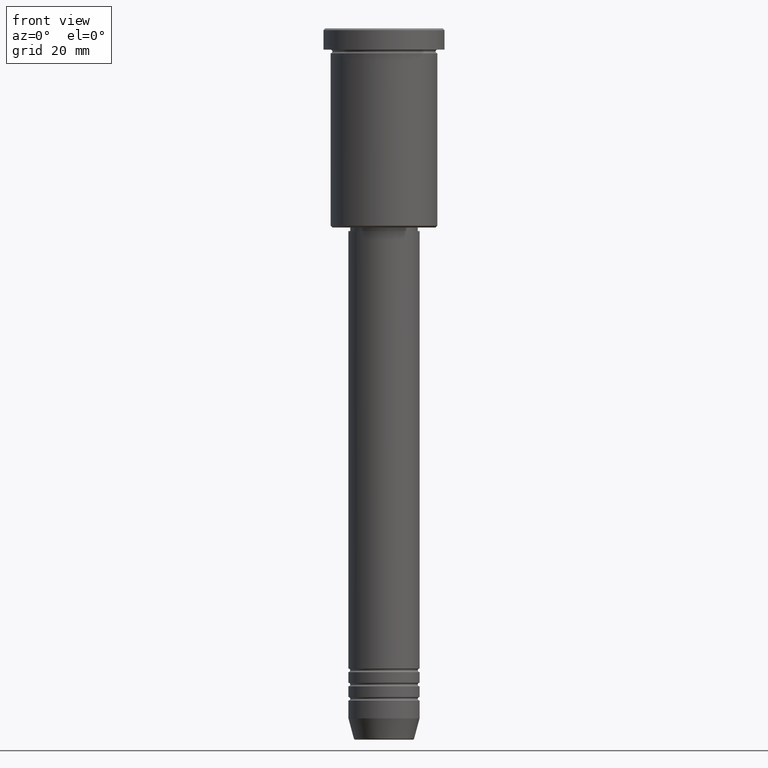
[diagram: clean part render]
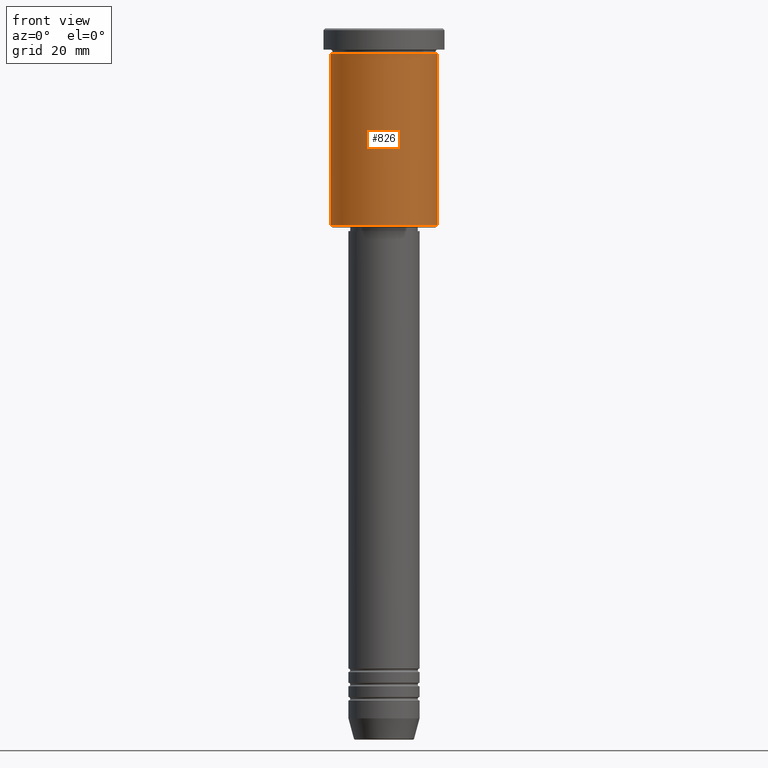
[diagram: same view with one face highlighted and labeled with its STEP entity id]
A machine part, front view. The second image highlights one B-rep face of the part: STEP entity #826.
In plain terms, the highlighted cylindrical surface (partial cylindrical patch) has radius 15 mm, axis along (-0, -0, 1).
Its self-contained STEP definition (entity closure, byte-faithful):
#10 = CIRCLE ( 'NONE', #573, 15.00000000000000000 ) ;
#14 = AXIS2_PLACEMENT_3D ( 'NONE', #670, #955, #1054 ) ;
#104 = DIRECTION ( 'NONE',  ( -0.000000000000000000, -0.000000000000000000, 1.000000000000000000 ) ) ;
#136 = DIRECTION ( 'NONE',  ( -0.000000000000000000, -0.000000000000000000, 1.000000000000000000 ) ) ;
#154 = AXIS2_PLACEMENT_3D ( 'NONE', #1010, #831, #755 ) ;
#243 = CARTESIAN_POINT ( 'NONE',  ( 15.00000000000000000, 0.000000000000000000, -6.999999999999995559 ) ) ;
#248 = EDGE_CURVE ( 'NONE', #411, #486, #984, .T. ) ;
#262 = CIRCLE ( 'NONE', #14, 15.00000000000000000 ) ;
#265 = VECTOR ( 'NONE', #136, 1000.000000000000000 ) ;
#294 = VERTEX_POINT ( 'NONE', #243 ) ;
#394 = LINE ( 'NONE', #754, #265 ) ;
#396 = CYLINDRICAL_SURFACE ( 'NONE', #154, 15.00000000000000000 ) ;
#406 = EDGE_CURVE ( 'NONE', #486, #294, #10, .T. ) ;
#411 = VERTEX_POINT ( 'NONE', #565 ) ;
#470 = FACE_OUTER_BOUND ( 'NONE', #1087, .T. ) ;
#486 = VERTEX_POINT ( 'NONE', #882 ) ;
#541 = DIRECTION ( 'NONE',  ( 1.000000000000000000, 0.000000000000000000, 0.000000000000000000 ) ) ;
#565 = CARTESIAN_POINT ( 'NONE',  ( -15.00000000000000000, 1.836970198721029589E-15, -55.49999999999998579 ) ) ;
#573 = AXIS2_PLACEMENT_3D ( 'NONE', #1021, #104, #541 ) ;
#670 = CARTESIAN_POINT ( 'NONE',  ( 0.000000000000000000, 0.000000000000000000, -55.49999999999998579 ) ) ;
#708 = DIRECTION ( 'NONE',  ( -0.000000000000000000, -0.000000000000000000, 1.000000000000000000 ) ) ;
#727 = ORIENTED_EDGE ( 'NONE', *, *, #956, .T. ) ;
#740 = VECTOR ( 'NONE', #708, 1000.000000000000000 ) ;
#754 = CARTESIAN_POINT ( 'NONE',  ( 15.00000000000000000, 0.000000000000000000, 0.000000000000000000 ) ) ;
#755 = DIRECTION ( 'NONE',  ( 1.000000000000000000, 0.000000000000000000, 0.000000000000000000 ) ) ;
#813 = ORIENTED_EDGE ( 'NONE', *, *, #248, .F. ) ;
#826 = ADVANCED_FACE ( 'NONE', ( #470 ), #396, .T. ) ;
#831 = DIRECTION ( 'NONE',  ( -0.000000000000000000, -0.000000000000000000, 1.000000000000000000 ) ) ;
#873 = CARTESIAN_POINT ( 'NONE',  ( 15.00000000000000000, 0.000000000000000000, -55.49999999999998579 ) ) ;
#882 = CARTESIAN_POINT ( 'NONE',  ( -15.00000000000000000, 1.836970198721029589E-15, -6.999999999999995559 ) ) ;
#955 = DIRECTION ( 'NONE',  ( -0.000000000000000000, -0.000000000000000000, 1.000000000000000000 ) ) ;
#956 = EDGE_CURVE ( 'NONE', #411, #1168, #262, .T. ) ;
#984 = LINE ( 'NONE', #1150, #740 ) ;
#1010 = CARTESIAN_POINT ( 'NONE',  ( 0.000000000000000000, 0.000000000000000000, 0.000000000000000000 ) ) ;
#1021 = CARTESIAN_POINT ( 'NONE',  ( 0.000000000000000000, 0.000000000000000000, -6.999999999999995559 ) ) ;
#1022 = ORIENTED_EDGE ( 'NONE', *, *, #406, .F. ) ;
#1054 = DIRECTION ( 'NONE',  ( -1.000000000000000000, 0.000000000000000000, 0.000000000000000000 ) ) ;
#1087 = EDGE_LOOP ( 'NONE', ( #813, #727, #1115, #1022 ) ) ;
#1115 = ORIENTED_EDGE ( 'NONE', *, *, #1182, .T. ) ;
#1150 = CARTESIAN_POINT ( 'NONE',  ( -15.00000000000000000, 1.836970198721029589E-15, 0.000000000000000000 ) ) ;
#1168 = VERTEX_POINT ( 'NONE', #873 ) ;
#1182 = EDGE_CURVE ( 'NONE', #1168, #294, #394, .T. ) ;